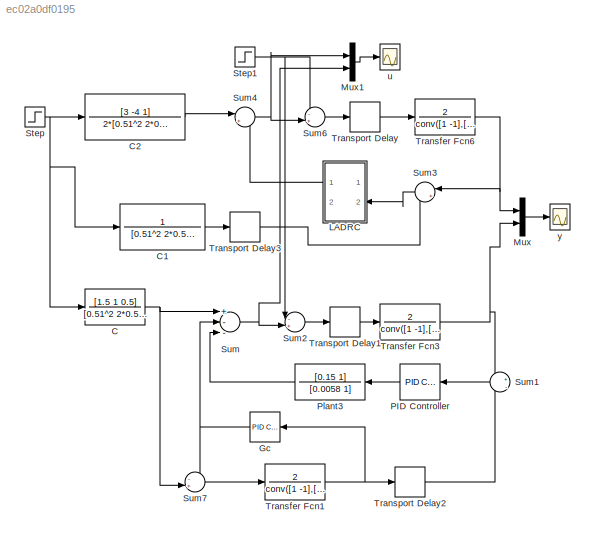
MODEL slx_ec02a0df0195
KIND model
BLOCK [TransferFcn] C
  Denominator = [0.51^2 2*0.51 1]
  Numerator = [1.5 1 0.5]
BLOCK [TransferFcn] C1
  Denominator = [0.51^2 2*0.51 1]
  Numerator = 1
BLOCK [TransferFcn] C2
  Denominator = 2*[0.51^2 2*0.51 1]
  Numerator = [3 -4 1]
BLOCK [Reference] Gc  REF=simulink_need_slupdate/PID Controller
  D = 3
  I = 0
  P = 0
  Ports = [1, 1]
  SourceBlock = simulink_need_slupdate/PID Controller
  SourceType = PID Controller
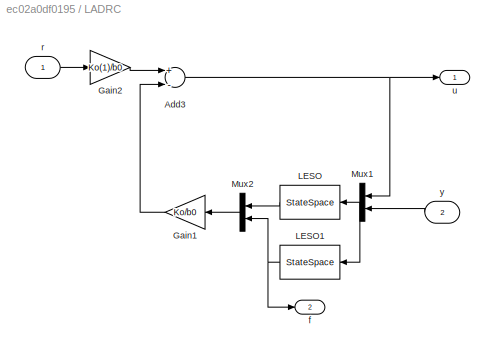
BLOCK [SubSystem] LADRC
  Ports = [2, 2]
  RequestExecContextInheritance = off
BLOCK [Sum] LADRC/Add3
  InputSameDT = off
  Inputs = +-
  OutDataTypeStr = Inherit: Inherit via internal rule
  Ports = [2, 1]
  SaturateOnIntegerOverflow = off
BLOCK [Gain] LADRC/Gain1
  Gain = Ko/b0
  Multiplication = Matrix(K*u)
  OutDataTypeStr = Inherit: Inherit via internal rule
  ParamDataTypeStr = Inherit: Inherit via internal rule
  SaturateOnIntegerOverflow = off
BLOCK [Gain] LADRC/Gain2
  Gain = Ko(1)/b0
  OutDataTypeStr = Inherit: Inherit via internal rule
  ParamDataTypeStr = Inherit: Inherit via internal rule
  SaturateOnIntegerOverflow = off
BLOCK [StateSpace] LADRC/LESO
  A = [zeros(n,1) eye(n,n);zeros(1,n+1)]-Lo*[1 zeros(1,n)]
  B = [[zeros(n-1,1);b0;0] Lo]
  C = [eye(n,n) zeros(n,1)]
  D = zeros(n,2)
  Ports = [1, 1]
  X0 = 0
BLOCK [StateSpace] LADRC/LESO1
  A = [zeros(n,1) eye(n,n);zeros(1,n+1)]-Lo*[1 zeros(1,n)]
  B = [[zeros(n-1,1);b0;0] Lo]
  C = [zeros(1,n) 1]
  D = [0 0]
  Ports = [1, 1]
  X0 = 0
BLOCK [Mux] LADRC/Mux1
  DisplayOption = bar
  Inputs = 2
  Ports = [2, 1]
BLOCK [Mux] LADRC/Mux2
  DisplayOption = bar
  Inputs = 2
  Ports = [2, 1]
BLOCK [Outport] LADRC/f
  IconDisplay = Port number
  Port = 2
BLOCK [Inport] LADRC/r
  IconDisplay = Port number
BLOCK [Outport] LADRC/u
  IconDisplay = Port number
BLOCK [Inport] LADRC/y
  IconDisplay = Port number
  Port = 2
BLOCK [Mux] Mux
  DisplayOption = bar
  Inputs = 2
  Ports = [2, 1]
BLOCK [Mux] Mux1
  DisplayOption = bar
  Inputs = 2
  Ports = [2, 1]
BLOCK [Reference] PID Controller  REF=simulink/Continuous/PID Controller
  AntiWindupMode = none
  Controller = PID
  D = 3.5671*1.3364
  DOutDataTypeStr = Inherit: Inherit via internal rule
  DOutMax = []
  DOutMin = []
  DParamDataTypeStr = Inherit: Inherit via internal rule
  DParamMax = []
  DParamMin = []
  ExternalReset = none
  FilterContinuousStateAttributes = ''
  FilterMethod = Forward Euler
  FilterOutDataTypeStr = Inherit: Inherit via internal rule
  FilterOutMax = []
  FilterOutMin = []
  FilterRTWStateStorageClass = Auto
  FilterStateMustResolveToSignalObject = off
  Form = Parallel
  I = 3.5671/1.491
  IOutDataTypeStr = Inherit: Inherit via internal rule
  IOutMax = []
  IOutMin = []
  IParamDataTypeStr = Inherit: Inherit via internal rule
  IParamMax = []
  IParamMin = []
  IgnoreLimit = off
  InitialConditionForFilter = 0
  InitialConditionForIntegrator = 0
  InitialConditionSource = internal
  IntegratorContinuousStateAttributes = ''
  IntegratorMethod = Forward Euler
  IntegratorOutDataTypeStr = Inherit: Inherit via internal rule
  IntegratorOutMax = []
  IntegratorOutMin = []
  IntegratorRTWStateStorageClass = Auto
  IntegratorStateMustResolveToSignalObject = off
  Kb = 1
  KbOutDataTypeStr = Inherit: Inherit via internal rule
  KbOutMax = []
  KbOutMin = []
  KbParamDataTypeStr = Inherit: Inherit via internal rule
  KbParamMax = []
  KbParamMin = []
  Kt = 1
  KtOutDataTypeStr = Inherit: Inherit via internal rule
  KtOutMax = []
  KtOutMin = []
  KtParamDataTypeStr = Inherit: Inherit via internal rule
  KtParamMax = []
  KtParamMin = []
  LimitOutput = off
  LinearizeAsGain = on
  LockScale = off
  LowerSaturationLimit = -inf
  N = 100
  NOutDataTypeStr = Inherit: Inherit via internal rule
  NOutMax = []
  NOutMin = []
  NParamDataTypeStr = Inherit: Inherit via internal rule
  NParamMax = []
  NParamMin = []
  P = 3.5671
  POutDataTypeStr = Inherit: Inherit via internal rule
  POutMax = []
  POutMin = []
  PParamDataTypeStr = Inherit: Inherit via internal rule
  PParamMax = []
  PParamMin = []
  Ports = [1, 1]
  RndMeth = Floor
  SampleTime = 1
  SaturateOnIntegerOverflow = off
  SaturationOutDataTypeStr = Inherit: Same as input
  SaturationOutMax = []
  SaturationOutMin = []
  SourceBlock = simulink/Continuous/PID Controller
  SourceType = PID 1dof
  SumAccumDataTypeStr = Inherit: Inherit via internal rule
  SumDAccumDataTypeStr = Inherit: Inherit via internal rule
  SumDOutDataTypeStr = Inherit: Inherit via internal rule
  SumDOutMax = []
  SumDOutMin = []
  SumI1AccumDataTypeStr = Inherit: Inherit via internal rule
  SumI1OutDataTypeStr = Inherit: Inherit via internal rule
  SumI1OutMax = []
  SumI1OutMin = []
  SumI2AccumDataTypeStr = Inherit: Inherit via internal rule
  SumI2OutDataTypeStr = Inherit: Inherit via internal rule
  SumI2OutMax = []
  SumI2OutMin = []
  SumI3AccumDataTypeStr = Inherit: Inherit via internal rule
  SumI3OutDataTypeStr = Inherit: Inherit via internal rule
  SumI3OutMax = []
  SumI3OutMin = []
  SumOutDataTypeStr = Inherit: Inherit via internal rule
  SumOutMax = []
  SumOutMin = []
  TimeDomain = Continuous-time
  TrackingMode = off
  UpperSaturationLimit = inf
  ZeroCross = on
BLOCK [TransferFcn] Plant3
  Denominator = [0.0058 1]
  Numerator = [0.15 1]
BLOCK [Step] Step
  SampleTime = 0
BLOCK [Step] Step1
  SampleTime = 0
  Time = 20
BLOCK [Sum] Sum
  InputSameDT = off
  Inputs = +--
  OutDataTypeStr = Inherit: Inherit via internal rule
  Ports = [3, 1]
BLOCK [Sum] Sum1
  IconShape = round
  InputSameDT = off
  Inputs = +|-
  OutDataTypeStr = Inherit: Inherit via internal rule
  Ports = [2, 1]
BLOCK [Sum] Sum2
  IconShape = round
  InputSameDT = off
  Inputs = -+|
  OutDataTypeStr = Inherit: Inherit via internal rule
  Ports = [2, 1]
BLOCK [Sum] Sum3
  IconShape = round
  InputSameDT = off
  Inputs = |+-
  OutDataTypeStr = Inherit: Inherit via internal rule
  Ports = [2, 1]
BLOCK [Sum] Sum4
  IconShape = round
  InputSameDT = off
  Inputs = |++
  OutDataTypeStr = Inherit: Inherit via internal rule
  Ports = [2, 1]
BLOCK [Sum] Sum6
  IconShape = round
  Inputs = -+|
  Ports = [2, 1]
BLOCK [Sum] Sum7
  IconShape = round
  InputSameDT = off
  Inputs = -+|
  OutDataTypeStr = Inherit: Inherit via internal rule
  Ports = [2, 1]
BLOCK [TransferFcn] Transfer Fcn1
  Denominator = conv([1 -1],[3 -1])
  Numerator = 2
BLOCK [TransferFcn] Transfer Fcn3
  Denominator = conv([1 -1],[3 -1])
  Numerator = 2
BLOCK [TransferFcn] Transfer Fcn6
  Denominator = conv([1 -1],[3 -1])
  Numerator = 2
BLOCK [TransportDelay] Transport Delay
  DelayTime = 0.3
  Ports = [1, 1]
BLOCK [TransportDelay] Transport Delay1
  DelayTime = 0.3
  Ports = [1, 1]
BLOCK [TransportDelay] Transport Delay2
  DelayTime = 0.3
  Ports = [1, 1]
BLOCK [TransportDelay] Transport Delay3
  DelayTime = 0.3
  Ports = [1, 1]
BLOCK [Scope] u
  Floating = off
  LimitDataPoints = off
  NumInputPorts = 1
  Ports = [1]
  SampleTime = 0
  SaveName = ScopeData1
  ShowLegends = off
  TickLabels = on
  TimeRange = 40
  YMax = 6
  YMin = -4
BLOCK [Scope] y
  Floating = off
  LimitDataPoints = off
  NumInputPorts = 1
  Ports = [1]
  SampleTime = 0
  ShowLegends = off
  TickLabels = on
  TimeRange = 40
  YMax = 1.4
  YMin = 0
LINE C1:1 -> Transport Delay3:1
LINE C2:1 -> Sum4:1
NET C:1 -> Sum7:2, Sum:1
NET Gc:1 -> Sum7:1, Sum:2
NET LADRC/Add3:1 -> LADRC/Mux1:1, LADRC/u:1
LINE LADRC/Gain1:1 -> LADRC/Add3:2
LINE LADRC/Gain2:1 -> LADRC/Add3:1
NET LADRC/LESO1:1 -> LADRC/Mux2:2, LADRC/f:1
LINE LADRC/LESO:1 -> LADRC/Mux2:1
NET LADRC/Mux1:1 -> LADRC/LESO1:1, LADRC/LESO:1
LINE LADRC/Mux2:1 -> LADRC/Gain1:1
LINE LADRC/r:1 -> LADRC/Gain2:1
LINE LADRC/y:1 -> LADRC/Mux1:2
LINE LADRC:1 -> Sum4:2
LINE Mux1:1 -> u:1
LINE Mux:1 -> y:1
LINE PID Controller:1 -> Plant3:1
LINE Plant3:1 -> Sum:3
NET Step1:1 -> Sum2:1, Sum6:1
NET Step:1 -> C1:1, C2:1, C:1
LINE Sum1:1 -> PID Controller:1
LINE Sum2:1 -> Transport Delay1:1
LINE Sum3:1 -> LADRC:2
NET Sum4:1 -> Mux1:1, Sum6:2
LINE Sum6:1 -> Transport Delay:1
LINE Sum7:1 -> Transfer Fcn1:1
NET Sum:1 -> Mux1:2, Sum2:2
NET Transfer Fcn1:1 -> Gc:1, Transport Delay2:1
NET Transfer Fcn3:1 -> Mux:2, Sum1:1
NET Transfer Fcn6:1 -> Mux:1, Sum3:1
LINE Transport Delay1:1 -> Transfer Fcn3:1
LINE Transport Delay2:1 -> Sum1:2
LINE Transport Delay3:1 -> Sum3:2
LINE Transport Delay:1 -> Transfer Fcn6:1
note: NET lines group one-source signal fan-out (src -> all destinations, sorted); 1:1 wires keep LINE
